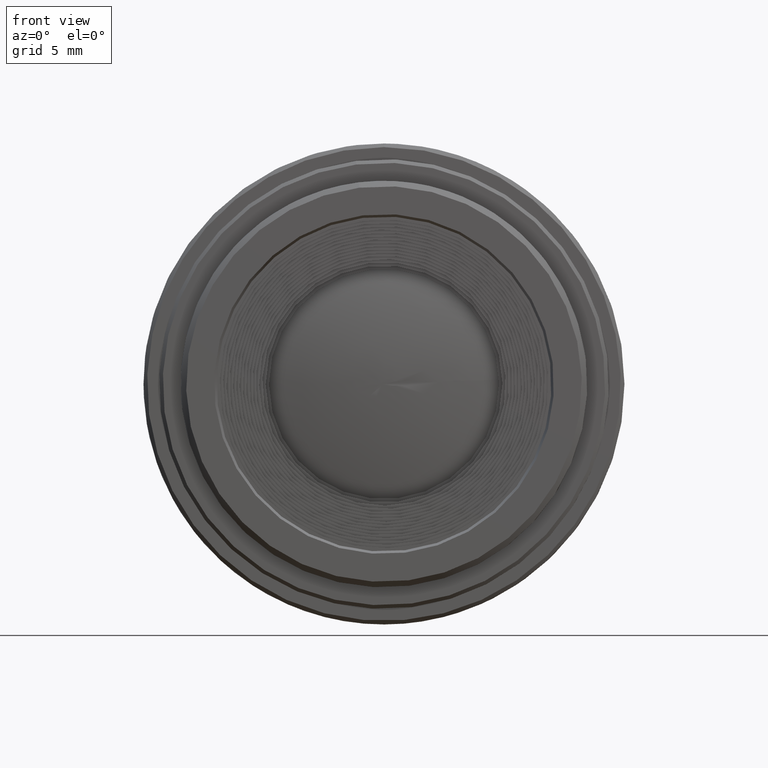
[diagram: clean part render]
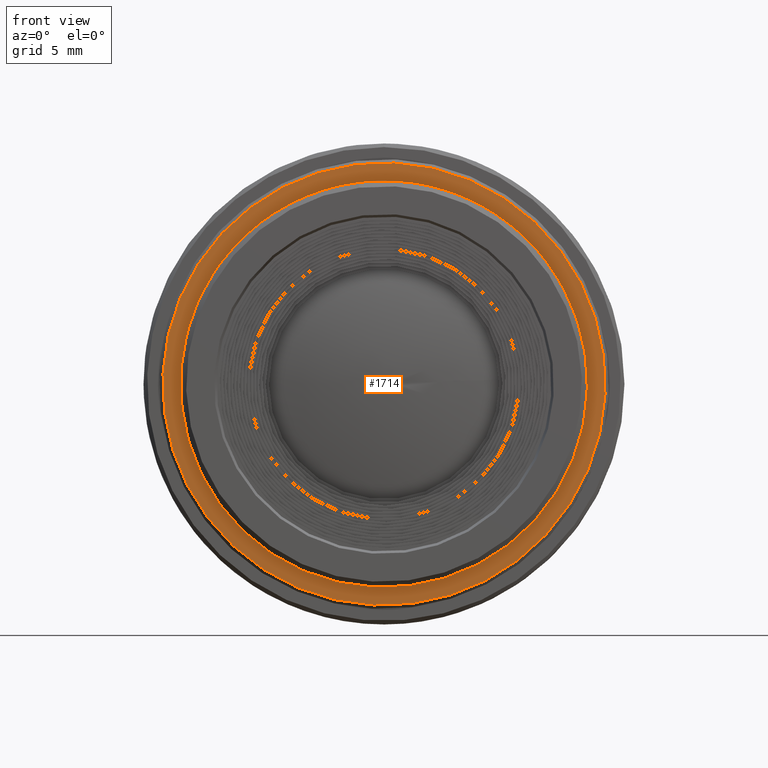
[diagram: same view with one face highlighted and labeled with its STEP entity id]
A machine part, front view. The second image highlights one B-rep face of the part: STEP entity #1714.
In plain terms, the highlighted planar face has unit normal (0, 1, 0).
Its self-contained STEP definition (entity closure, byte-faithful):
#14 = CIRCLE ( 'NONE', #627, 11.30000000000000249 ) ;
#16 = DIRECTION ( 'NONE',  ( 0.1252945241615309180, 0.000000000000000000, -0.9921195906820585719 ) ) ;
#144 = EDGE_LOOP ( 'NONE', ( #684 ) ) ;
#202 = CARTESIAN_POINT ( 'NONE',  ( 1.415828123025299812, -0.5880522725749716129, -11.21095137470726399 ) ) ;
#319 = DIRECTION ( 'NONE',  ( -0.1252945241615309735, 0.000000000000000000, 0.9921195906820586830 ) ) ;
#465 = DIRECTION ( 'NONE',  ( -0.000000000000000000, -1.000000000000000000, -0.000000000000000000 ) ) ;
#526 = FACE_OUTER_BOUND ( 'NONE', #1242, .T. ) ;
#627 = AXIS2_PLACEMENT_3D ( 'NONE', #924, #1078, #16 ) ;
#684 = ORIENTED_EDGE ( 'NONE', *, *, #938, .F. ) ;
#687 = DIRECTION ( 'NONE',  ( 0.000000000000000000, 1.000000000000000000, 0.000000000000000000 ) ) ;
#751 = CARTESIAN_POINT ( 'NONE',  ( -1.541122466136237712, -0.5880522725750167989, 12.20306953177646747 ) ) ;
#924 = CARTESIAN_POINT ( 'NONE',  ( 0.000000000000000000, -0.5880522725749716129, 0.000000000000000000 ) ) ;
#930 = DIRECTION ( 'NONE',  ( -0.1252945241615309457, 0.000000000000000000, 0.9921195906820586830 ) ) ;
#938 = EDGE_CURVE ( 'NONE', #1439, #1439, #14, .T. ) ;
#1068 = PLANE ( 'NONE',  #1537 ) ;
#1078 = DIRECTION ( 'NONE',  ( 0.000000000000000000, -1.000000000000000000, 0.000000000000000000 ) ) ;
#1242 = EDGE_LOOP ( 'NONE', ( #1421 ) ) ;
#1362 = FACE_BOUND ( 'NONE', #144, .T. ) ;
#1373 = CARTESIAN_POINT ( 'NONE',  ( -10.78989043072267329, -0.5880522725749716129, -13.90912230226763135 ) ) ;
#1392 = EDGE_CURVE ( 'NONE', #1699, #1699, #1739, .T. ) ;
#1421 = ORIENTED_EDGE ( 'NONE', *, *, #1392, .T. ) ;
#1429 = AXIS2_PLACEMENT_3D ( 'NONE', #1676, #465, #319 ) ;
#1439 = VERTEX_POINT ( 'NONE', #202 ) ;
#1537 = AXIS2_PLACEMENT_3D ( 'NONE', #1373, #687, #930 ) ;
#1676 = CARTESIAN_POINT ( 'NONE',  ( 0.000000000000000000, -0.5880522725750167989, 0.000000000000000000 ) ) ;
#1699 = VERTEX_POINT ( 'NONE', #751 ) ;
#1714 = ADVANCED_FACE ( 'NONE', ( #1362, #526 ), #1068, .F. ) ;
#1739 = CIRCLE ( 'NONE', #1429, 12.29999855499995398 ) ;